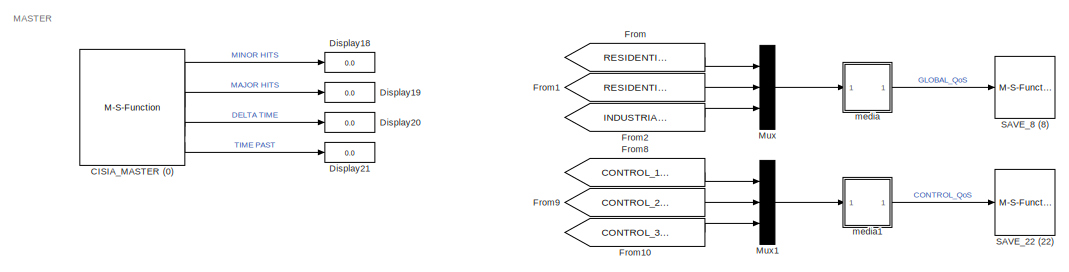
[diagram: root canvas - part 1/9, top left region]
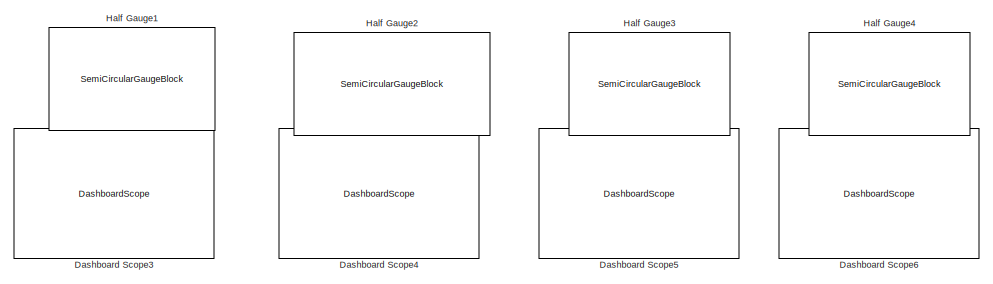
[diagram: root canvas - part 2/9, top right region]
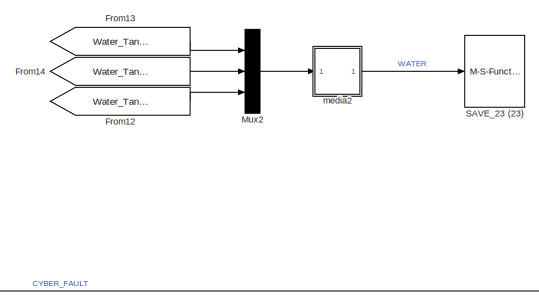
[diagram: root canvas - part 3/9, top center region]
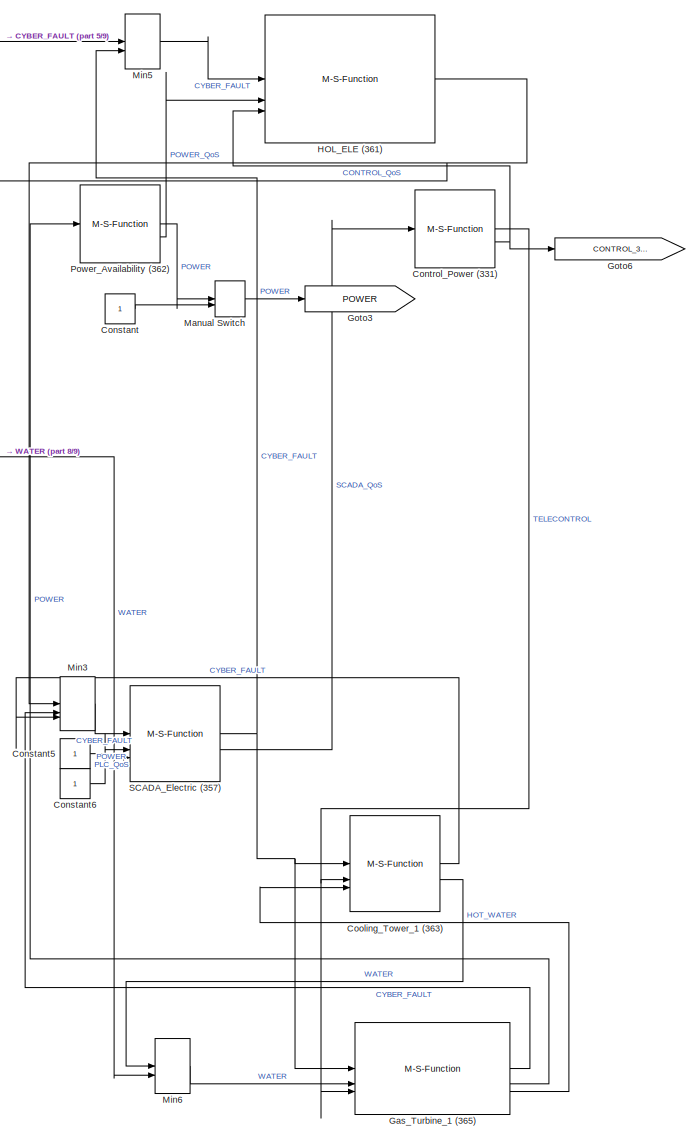
[diagram: root canvas - part 4/9, right side, full height]
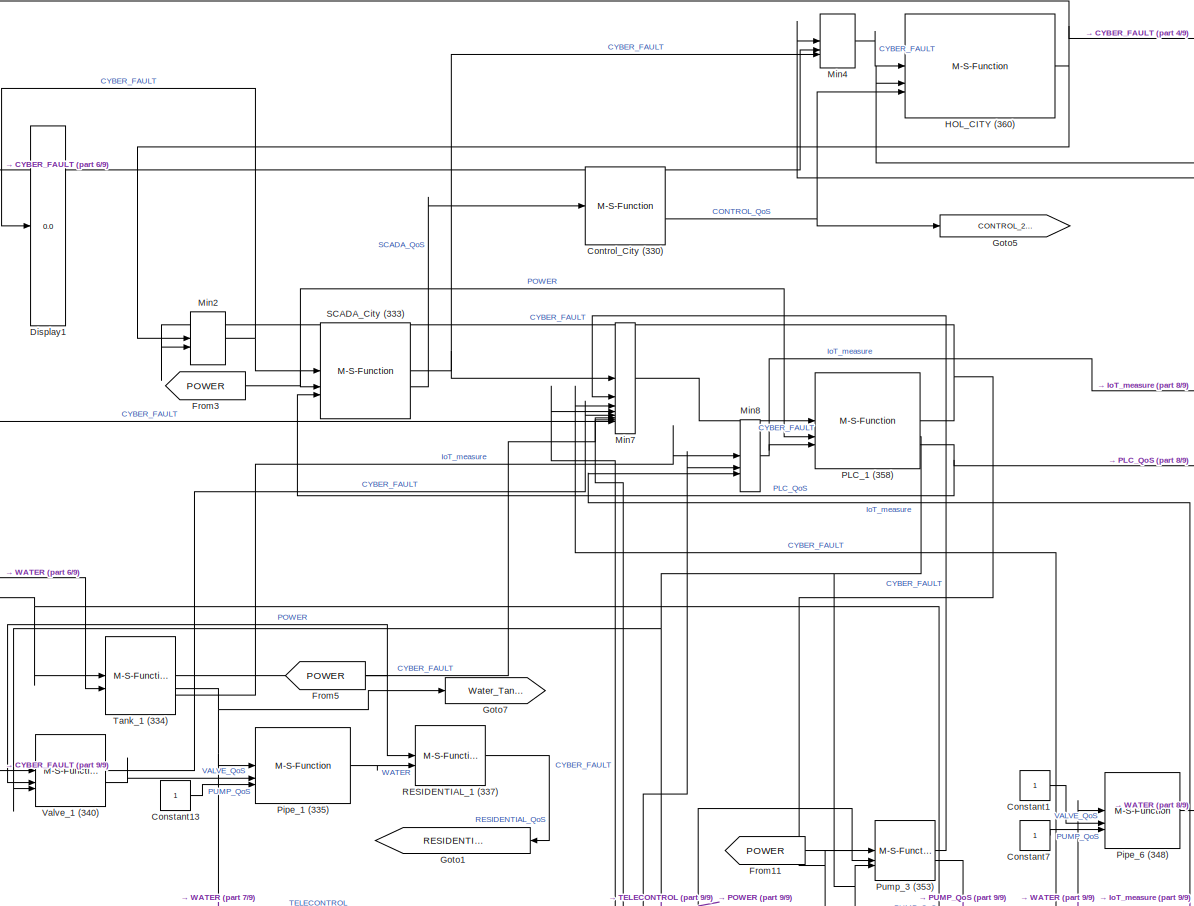
[diagram: root canvas - part 5/9, central region]
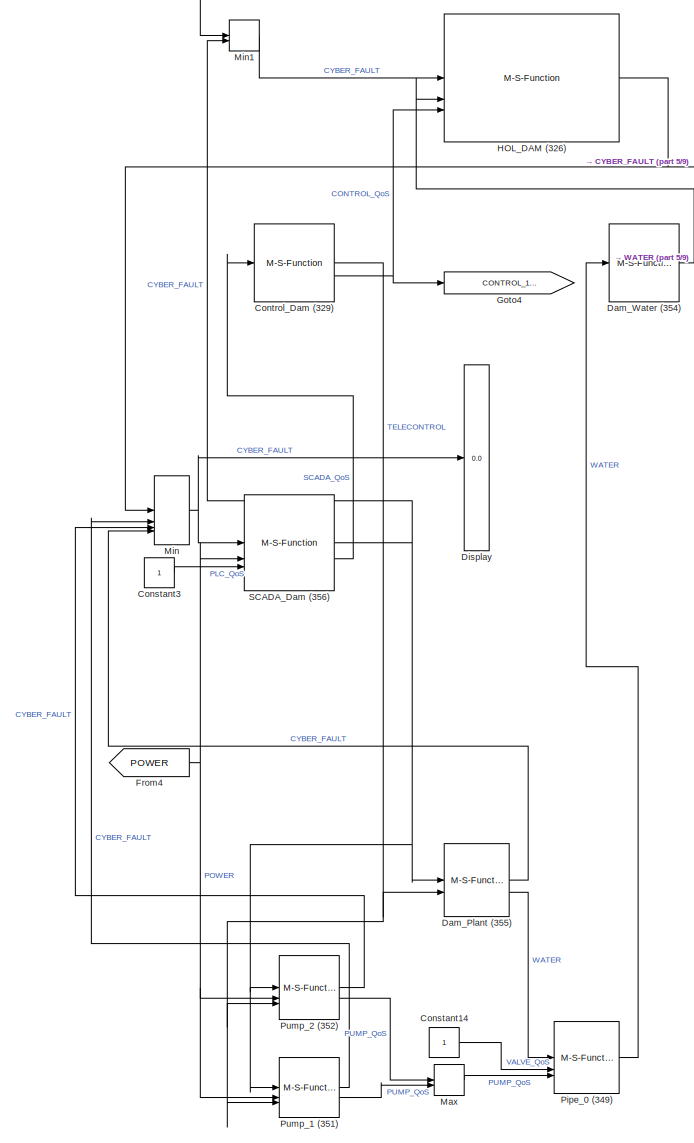
[diagram: root canvas - part 6/9, left side, full height]
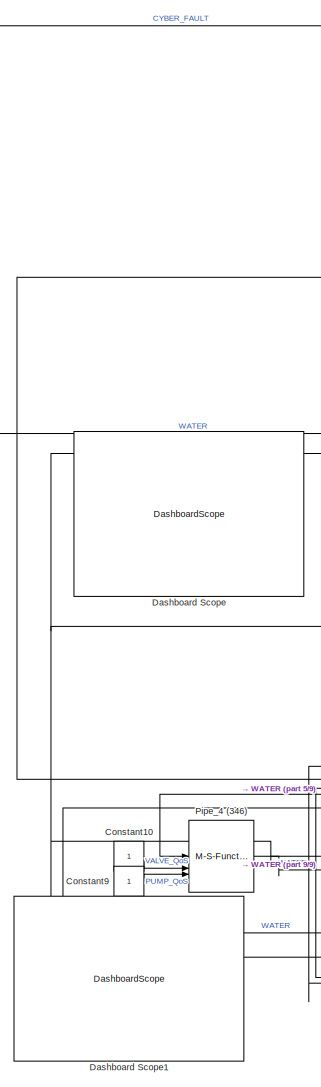
[diagram: root canvas - part 7/9, middle left region]
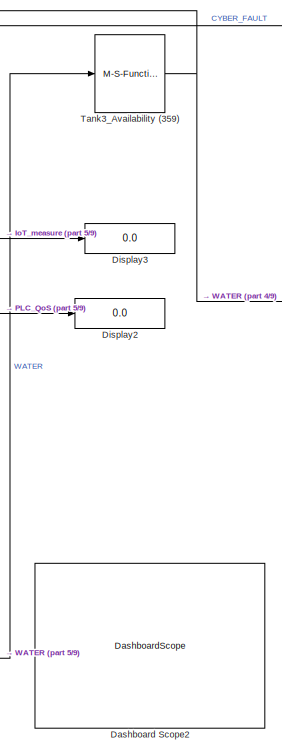
[diagram: root canvas - part 8/9, middle right region]
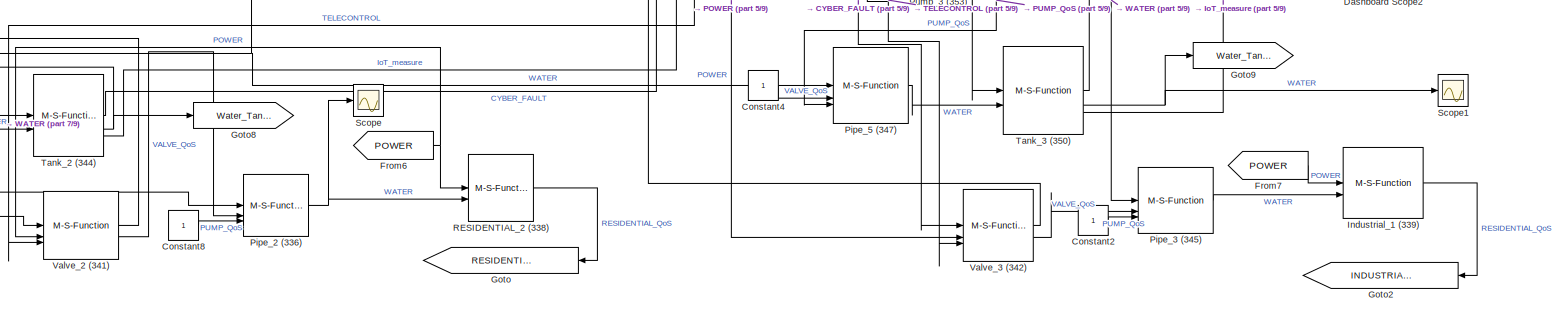
[diagram: root canvas - part 9/9, bottom center region]
MODEL slx_b3e928d2ec79
KIND model
CONFIG AbsTol = auto
CONFIG EnableMultiTasking = off
CONFIG FixedStep = auto
CONFIG MaxStep = auto
CONFIG MinStep = auto
CONFIG RelTol = 1e-3
CONFIG SampleTimeConstraint = Unconstrained
CONFIG SolverName = VariableStepAuto
CONFIG StartTime = 0.0
CONFIG StopTime = 6
BLOCK [M-S-Function] CISIA_MASTER (0)
  FunctionName = cisia_msfun
  Parameters = Parameter1, Parameter2, Parameter3, resources, Parameter4, Parameter5, Parameter6, Parameter7, Parameter8, Parameter9,Parameter11,Parameter12
BLOCK [Constant] Constant
BLOCK [Constant] Constant1
BLOCK [Constant] Constant10
BLOCK [Constant] Constant13
BLOCK [Constant] Constant14
BLOCK [Constant] Constant2
BLOCK [Constant] Constant3
BLOCK [Constant] Constant4
BLOCK [Constant] Constant5
BLOCK [Constant] Constant6
BLOCK [Constant] Constant7
BLOCK [Constant] Constant8
BLOCK [Constant] Constant9
BLOCK [M-S-Function] Control_City (330)
  FunctionName = cisia_msfun
  Parameters = Parameter1, Parameter2, Parameter3, resources, Parameter10, codeupdate, step_received, step_computed, dynamic_computed, step_sended, id_entity, id_project, id_type, name_type, color
BLOCK [M-S-Function] Control_Dam (329)
  FunctionName = cisia_msfun
  Parameters = Parameter1, Parameter2, Parameter3, resources, Parameter10, codeupdate, step_received, step_computed, dynamic_computed, step_sended, id_entity, id_project, id_type, name_type, color
BLOCK [M-S-Function] Control_Power (331)
  FunctionName = cisia_msfun
  Parameters = Parameter1, Parameter2, Parameter3, resources, Parameter10, codeupdate, step_received, step_computed, dynamic_computed, step_sended, id_entity, id_project, id_type, name_type, color
BLOCK [M-S-Function] Cooling_Tower_1 (363)
  FunctionName = cisia_msfun
  Parameters = Parameter1, Parameter2, Parameter3, resources, Parameter10, codeupdate, step_received, step_computed, dynamic_computed, step_sended, id_entity, id_project, id_type, name_type, color
BLOCK [M-S-Function] Dam_Plant (355)
  FunctionName = cisia_msfun
  Parameters = Parameter1, Parameter2, Parameter3, resources, Parameter10, codeupdate, step_received, step_computed, dynamic_computed, step_sended, id_entity, id_project, id_type, name_type, color
BLOCK [M-S-Function] Dam_Water (354)
  FunctionName = cisia_msfun
  Parameters = Parameter1, Parameter2, Parameter3, resources, Parameter10, codeupdate, step_received, step_computed, dynamic_computed, step_sended, id_entity, id_project, id_type, name_type, color
BLOCK [DashboardScope] Dashboard Scope
  Ymax = 1
  Ymin = 0
BLOCK [DashboardScope] Dashboard Scope1
  Ymax = 1
  Ymin = 0
BLOCK [DashboardScope] Dashboard Scope2
  Ymax = 1
  Ymin = 0
BLOCK [DashboardScope] Dashboard Scope3
  Ymax = 1
  Ymin = 0
BLOCK [DashboardScope] Dashboard Scope4
  Ymax = 1
  Ymin = 0
BLOCK [DashboardScope] Dashboard Scope5
  Ymax = 1
  Ymin = 0
BLOCK [DashboardScope] Dashboard Scope6
  Ymax = 1
  Ymin = 0
BLOCK [Display] Display
  Decimation = 1
BLOCK [Display] Display1
  Decimation = 1
BLOCK [Display] Display18
  Decimation = 1
BLOCK [Display] Display19
  Decimation = 1
BLOCK [Display] Display2
  Decimation = 1
BLOCK [Display] Display20
  Decimation = 1
BLOCK [Display] Display21
  Decimation = 1
BLOCK [Display] Display3
  Decimation = 1
BLOCK [From] From
  GotoTag = RESIDENTIAL_1_QoS
BLOCK [From] From1
  GotoTag = RESIDENTIAL_2_QoS
BLOCK [From] From10
  GotoTag = CONTROL_3_QoS
BLOCK [From] From11
  GotoTag = POWER
BLOCK [From] From12
  GotoTag = Water_Tank_3
BLOCK [From] From13
  GotoTag = Water_Tank_1
BLOCK [From] From14
  GotoTag = Water_Tank_2
BLOCK [From] From2
  GotoTag = INDUSTRIAL_1_QoS
BLOCK [From] From3
  GotoTag = POWER
BLOCK [From] From4
  GotoTag = POWER
BLOCK [From] From5
  GotoTag = POWER
BLOCK [From] From6
  GotoTag = POWER
BLOCK [From] From7
  GotoTag = POWER
BLOCK [From] From8
  GotoTag = CONTROL_1_QoS
BLOCK [From] From9
  GotoTag = CONTROL_2_QoS
BLOCK [M-S-Function] Gas_Turbine_1 (365)
  FunctionName = cisia_msfun
  Parameters = Parameter1, Parameter2, Parameter3, resources, Parameter10, codeupdate, step_received, step_computed, dynamic_computed, step_sended, id_entity, id_project, id_type, name_type, color
BLOCK [Goto] Goto
  GotoTag = RESIDENTIAL_2_QoS
  NameLocation = top
BLOCK [Goto] Goto1
  GotoTag = RESIDENTIAL_1_QoS
  NameLocation = top
BLOCK [Goto] Goto2
  GotoTag = INDUSTRIAL_1_QoS
  NameLocation = top
BLOCK [Goto] Goto3
  GotoTag = POWER
BLOCK [Goto] Goto4
  GotoTag = CONTROL_1_QoS
BLOCK [Goto] Goto5
  GotoTag = CONTROL_2_QoS
BLOCK [Goto] Goto6
  GotoTag = CONTROL_3_QoS
BLOCK [Goto] Goto7
  GotoTag = Water_Tank_1
BLOCK [Goto] Goto8
  GotoTag = Water_Tank_2
BLOCK [Goto] Goto9
  GotoTag = Water_Tank_3
BLOCK [M-S-Function] HOL_CITY (360)
  FunctionName = cisia_msfun
  Parameters = Parameter1, Parameter2, Parameter3, resources, Parameter10, codeupdate, step_received, step_computed, dynamic_computed, step_sended, id_entity, id_project, id_type, name_type, color
BLOCK [M-S-Function] HOL_DAM (326)
  FunctionName = cisia_msfun
  Parameters = Parameter1, Parameter2, Parameter3, resources, Parameter10, codeupdate, step_received, step_computed, dynamic_computed, step_sended, id_entity, id_project, id_type, name_type, color
BLOCK [M-S-Function] HOL_ELE (361)
  FunctionName = cisia_msfun
  Parameters = Parameter1, Parameter2, Parameter3, resources, Parameter10, codeupdate, step_received, step_computed, dynamic_computed, step_sended, id_entity, id_project, id_type, name_type, color
BLOCK [SemiCircularGaugeBlock] Half Gauge1
  ScaleMax = 1
BLOCK [SemiCircularGaugeBlock] Half Gauge2
  ScaleMax = 1
BLOCK [SemiCircularGaugeBlock] Half Gauge3
  ScaleMax = 1
BLOCK [SemiCircularGaugeBlock] Half Gauge4
  ScaleMax = 1
BLOCK [M-S-Function] Industrial_1 (339)
  FunctionName = cisia_msfun
  Parameters = Parameter1, Parameter2, Parameter3, resources, Parameter10, codeupdate, step_received, step_computed, dynamic_computed, step_sended, id_entity, id_project, id_type, name_type, color
BLOCK [ManualSwitch] Manual Switch
BLOCK [MinMax] Max
  Function = max
  Inputs = 2
BLOCK [MinMax] Min
  Function = max
  Inputs = 4
BLOCK [MinMax] Min1
  Function = max
  Inputs = 2
BLOCK [MinMax] Min2
  Function = max
  Inputs = 2
BLOCK [MinMax] Min3
  Function = max
  Inputs = 3
BLOCK [MinMax] Min4
  Function = max
  Inputs = 3
BLOCK [MinMax] Min5
  Function = max
  Inputs = 2
BLOCK [MinMax] Min6
  Inputs = 2
BLOCK [MinMax] Min7
  Function = max
  Inputs = 8
BLOCK [MinMax] Min8
  Inputs = 3
BLOCK [Mux] Mux
  DisplayOption = bar
  Inputs = 3
BLOCK [Mux] Mux1
  DisplayOption = bar
  Inputs = 3
BLOCK [Mux] Mux2
  DisplayOption = bar
  Inputs = 3
BLOCK [M-S-Function] PLC_1 (358)
  FunctionName = cisia_msfun
  Parameters = Parameter1, Parameter2, Parameter3, resources, Parameter10, codeupdate, step_received, step_computed, dynamic_computed, step_sended, id_entity, id_project, id_type, name_type, color
BLOCK [M-S-Function] Pipe_0 (349)
  FunctionName = cisia_msfun
  Parameters = Parameter1, Parameter2, Parameter3, resources, Parameter10, codeupdate, step_received, step_computed, dynamic_computed, step_sended, id_entity, id_project, id_type, name_type, color
BLOCK [M-S-Function] Pipe_1 (335)
  FunctionName = cisia_msfun
  Parameters = Parameter1, Parameter2, Parameter3, resources, Parameter10, codeupdate, step_received, step_computed, dynamic_computed, step_sended, id_entity, id_project, id_type, name_type, color
BLOCK [M-S-Function] Pipe_2 (336)
  FunctionName = cisia_msfun
  Parameters = Parameter1, Parameter2, Parameter3, resources, Parameter10, codeupdate, step_received, step_computed, dynamic_computed, step_sended, id_entity, id_project, id_type, name_type, color
BLOCK [M-S-Function] Pipe_3 (345)
  FunctionName = cisia_msfun
  Parameters = Parameter1, Parameter2, Parameter3, resources, Parameter10, codeupdate, step_received, step_computed, dynamic_computed, step_sended, id_entity, id_project, id_type, name_type, color
BLOCK [M-S-Function] Pipe_4 (346)
  FunctionName = cisia_msfun
  Parameters = Parameter1, Parameter2, Parameter3, resources, Parameter10, codeupdate, step_received, step_computed, dynamic_computed, step_sended, id_entity, id_project, id_type, name_type, color
BLOCK [M-S-Function] Pipe_5 (347)
  FunctionName = cisia_msfun
  Parameters = Parameter1, Parameter2, Parameter3, resources, Parameter10, codeupdate, step_received, step_computed, dynamic_computed, step_sended, id_entity, id_project, id_type, name_type, color
BLOCK [M-S-Function] Pipe_6 (348)
  FunctionName = cisia_msfun
  Parameters = Parameter1, Parameter2, Parameter3, resources, Parameter10, codeupdate, step_received, step_computed, dynamic_computed, step_sended, id_entity, id_project, id_type, name_type, color
BLOCK [M-S-Function] Power_Availability (362)
  FunctionName = cisia_msfun
  Parameters = Parameter1, Parameter2, Parameter3, resources, Parameter10, codeupdate, step_received, step_computed, dynamic_computed, step_sended, id_entity, id_project, id_type, name_type, color
BLOCK [M-S-Function] Pump_1 (351)
  FunctionName = cisia_msfun
  Parameters = Parameter1, Parameter2, Parameter3, resources, Parameter10, codeupdate, step_received, step_computed, dynamic_computed, step_sended, id_entity, id_project, id_type, name_type, color
BLOCK [M-S-Function] Pump_2 (352)
  FunctionName = cisia_msfun
  Parameters = Parameter1, Parameter2, Parameter3, resources, Parameter10, codeupdate, step_received, step_computed, dynamic_computed, step_sended, id_entity, id_project, id_type, name_type, color
BLOCK [M-S-Function] Pump_3 (353)
  FunctionName = cisia_msfun
  Parameters = Parameter1, Parameter2, Parameter3, resources, Parameter10, codeupdate, step_received, step_computed, dynamic_computed, step_sended, id_entity, id_project, id_type, name_type, color
BLOCK [M-S-Function] RESIDENTIAL_1 (337)
  FunctionName = cisia_msfun
  Parameters = Parameter1, Parameter2, Parameter3, resources, Parameter10, codeupdate, step_received, step_computed, dynamic_computed, step_sended, id_entity, id_project, id_type, name_type, color
BLOCK [M-S-Function] RESIDENTIAL_2 (338)
  FunctionName = cisia_msfun
  Parameters = Parameter1, Parameter2, Parameter3, resources, Parameter10, codeupdate, step_received, step_computed, dynamic_computed, step_sended, id_entity, id_project, id_type, name_type, color
BLOCK [M-S-Function] SAVE_22 (22)
  FunctionName = cisia_msfun
  Parameters = Parameter1, Parameter2, Parameter3, Parameter4,Parameter5,Parameter6,Parameter7
BLOCK [M-S-Function] SAVE_23 (23)
  FunctionName = cisia_msfun
  Parameters = Parameter1, Parameter2, Parameter3, Parameter4,Parameter5,Parameter6,Parameter7
BLOCK [M-S-Function] SAVE_8 (8)
  FunctionName = cisia_msfun
  Parameters = Parameter1, Parameter2, Parameter3, Parameter4,Parameter5,Parameter6,Parameter7
BLOCK [M-S-Function] SCADA_City (333)
  FunctionName = cisia_msfun
  Parameters = Parameter1, Parameter2, Parameter3, resources, Parameter10, codeupdate, step_received, step_computed, dynamic_computed, step_sended, id_entity, id_project, id_type, name_type, color
BLOCK [M-S-Function] SCADA_Dam (356)
  FunctionName = cisia_msfun
  Parameters = Parameter1, Parameter2, Parameter3, resources, Parameter10, codeupdate, step_received, step_computed, dynamic_computed, step_sended, id_entity, id_project, id_type, name_type, color
BLOCK [M-S-Function] SCADA_Electric (357)
  FunctionName = cisia_msfun
  Parameters = Parameter1, Parameter2, Parameter3, resources, Parameter10, codeupdate, step_received, step_computed, dynamic_computed, step_sended, id_entity, id_project, id_type, name_type, color
BLOCK [Scope] Scope
  Floating = off
  NumInputPorts = 1
  ScopeSpecificationString = Simulink.scopes.TimeScopeBlockCfg('CurrentConfiguration', extmgr.ConfigurationSet(extmgr.Configuration('Core','General UI',true),extmgr.Configuration('Core','Source UI',true),extmgr.Configuration('Sources','WiredSimulink',true),extmgr.Configuration('Visuals','Time Domain',true,'SerializedDisplays',{struct('MinYLimReal','0.9','MaxYLimReal','1.1','YLabelReal','','MinYLimMag','0.9','MaxYLimMag','1.1'...<+1327ch>
BLOCK [Scope] Scope1
  Floating = off
  NumInputPorts = 1
  ScopeSpecificationString = Simulink.scopes.TimeScopeBlockCfg('CurrentConfiguration', extmgr.ConfigurationSet(extmgr.Configuration('Core','General UI',true),extmgr.Configuration('Core','Source UI',true),extmgr.Configuration('Sources','WiredSimulink',true,'DataLoggingVariableName','ScopeData1'),extmgr.Configuration('Visuals','Time Domain',true,'SerializedDisplays',{struct('MinYLimReal','-0.125','MaxYLimReal','1.125','YLabelRe...<+1413ch>
BLOCK [M-S-Function] Tank3_Availability (359)
  FunctionName = cisia_msfun
  Parameters = Parameter1, Parameter2, Parameter3, resources, Parameter10, codeupdate, step_received, step_computed, dynamic_computed, step_sended, id_entity, id_project, id_type, name_type, color
BLOCK [M-S-Function] Tank_1 (334)
  FunctionName = cisia_msfun
  Parameters = Parameter1, Parameter2, Parameter3, resources, Parameter10, codeupdate, step_received, step_computed, dynamic_computed, step_sended, id_entity, id_project, id_type, name_type, color
BLOCK [M-S-Function] Tank_2 (344)
  FunctionName = cisia_msfun
  Parameters = Parameter1, Parameter2, Parameter3, resources, Parameter10, codeupdate, step_received, step_computed, dynamic_computed, step_sended, id_entity, id_project, id_type, name_type, color
BLOCK [M-S-Function] Tank_3 (350)
  FunctionName = cisia_msfun
  Parameters = Parameter1, Parameter2, Parameter3, resources, Parameter10, codeupdate, step_received, step_computed, dynamic_computed, step_sended, id_entity, id_project, id_type, name_type, color
BLOCK [M-S-Function] Valve_1 (340)
  FunctionName = cisia_msfun
  Parameters = Parameter1, Parameter2, Parameter3, resources, Parameter10, codeupdate, step_received, step_computed, dynamic_computed, step_sended, id_entity, id_project, id_type, name_type, color
BLOCK [M-S-Function] Valve_2 (341)
  FunctionName = cisia_msfun
  Parameters = Parameter1, Parameter2, Parameter3, resources, Parameter10, codeupdate, step_received, step_computed, dynamic_computed, step_sended, id_entity, id_project, id_type, name_type, color
BLOCK [M-S-Function] Valve_3 (342)
  FunctionName = cisia_msfun
  Parameters = Parameter1, Parameter2, Parameter3, resources, Parameter10, codeupdate, step_received, step_computed, dynamic_computed, step_sended, id_entity, id_project, id_type, name_type, color
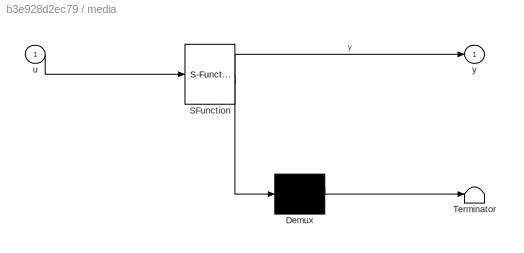
BLOCK [SubSystem] media
  ErrorFcn = Stateflow.Translate.translate
  LibrarySourceBlock = simulink/User-Defined\nFunctions/MATLAB Function
  PermitHierarchicalResolution = ExplicitOnly
  SFBlockType = MATLAB Function
  TreatAsAtomicUnit = on
BLOCK [Demux] media/ Demux 
  Outputs = 1
BLOCK [S-Function] media/ SFunction 
  EnableBusSupport = on
  FunctionName = sf_sfun
  PortCounts = [1 2]
  SFcnIsStateOwnerBlock = off
  SFunctionDeploymentMode = off
  Tag = Stateflow S-Function 2
BLOCK [Terminator] media/ Terminator 
BLOCK [Inport] media/u
BLOCK [Outport] media/y
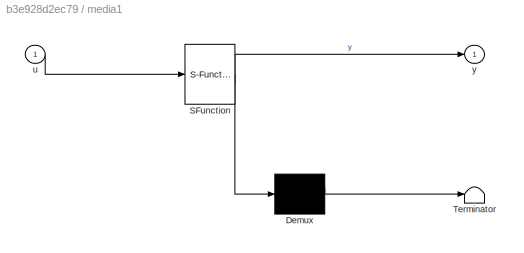
BLOCK [SubSystem] media1
  ErrorFcn = Stateflow.Translate.translate
  LibrarySourceBlock = simulink/User-Defined\nFunctions/MATLAB Function
  PermitHierarchicalResolution = ExplicitOnly
  SFBlockType = MATLAB Function
  TreatAsAtomicUnit = on
BLOCK [Demux] media1/ Demux 
  Outputs = 1
BLOCK [S-Function] media1/ SFunction 
  EnableBusSupport = on
  FunctionName = sf_sfun
  PortCounts = [1 2]
  SFcnIsStateOwnerBlock = off
  SFunctionDeploymentMode = off
  Tag = Stateflow S-Function 1
BLOCK [Terminator] media1/ Terminator 
BLOCK [Inport] media1/u
BLOCK [Outport] media1/y
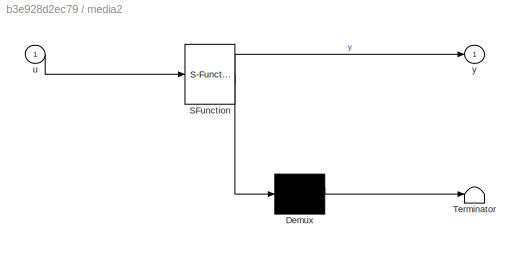
BLOCK [SubSystem] media2
  ErrorFcn = Stateflow.Translate.translate
  LibrarySourceBlock = simulink/User-Defined\nFunctions/MATLAB Function
  PermitHierarchicalResolution = ExplicitOnly
  SFBlockType = MATLAB Function
  TreatAsAtomicUnit = on
BLOCK [Demux] media2/ Demux 
  Outputs = 1
BLOCK [S-Function] media2/ SFunction 
  EnableBusSupport = on
  FunctionName = sf_sfun
  PortCounts = [1 2]
  SFcnIsStateOwnerBlock = off
  SFunctionDeploymentMode = off
  Tag = Stateflow S-Function 3
BLOCK [Terminator] media2/ Terminator 
BLOCK [Inport] media2/u
BLOCK [Outport] media2/y
ANNOTATION (root): MASTER
LINE CISIA_MASTER (0):1 -> Display18:1
LINE CISIA_MASTER (0):2 -> Display19:1
LINE CISIA_MASTER (0):3 -> Display20:1
LINE CISIA_MASTER (0):4 -> Display21:1
LINE Constant10:1 -> Pipe_4 (346):2
LINE Constant13:1 -> Pipe_1 (335):3
LINE Constant14:1 -> Pipe_0 (349):2
LINE Constant1:1 -> Pipe_6 (348):2
LINE Constant2:1 -> Pipe_3 (345):3
LINE Constant3:1 -> SCADA_Dam (356):3
LINE Constant4:1 -> Pipe_5 (347):2
LINE Constant5:1 -> SCADA_Electric (357):2
LINE Constant6:1 -> SCADA_Electric (357):3
LINE Constant7:1 -> Pipe_6 (348):3
LINE Constant8:1 -> Pipe_2 (336):3
LINE Constant9:1 -> Pipe_4 (346):3
LINE Constant:1 -> Manual Switch:2
NET Control_City (330):2 -> Goto5:1, HOL_CITY (360):3
NET Control_Dam (329):1 -> Dam_Plant (355):2, Pump_1 (351):3, Pump_2 (352):3
NET Control_Dam (329):2 -> Goto4:1, HOL_DAM (326):3
NET Control_Power (331):1 -> Cooling_Tower_1 (363):2, Gas_Turbine_1 (365):3
NET Control_Power (331):2 -> Goto6:1, HOL_ELE (361):3
LINE Cooling_Tower_1 (363):1 -> Min3:3
LINE Cooling_Tower_1 (363):2 -> Min6:1
LINE Dam_Plant (355):1 -> Min:4
LINE Dam_Plant (355):2 -> Pipe_0 (349):1
NET Dam_Water (354):1 -> HOL_DAM (326):2, Tank_1 (334):2
LINE From10:1 -> Mux1:3
NET From11:1 -> Pump_3 (353):2, Valve_3 (342):2
LINE From12:1 -> Mux2:3
LINE From13:1 -> Mux2:1
LINE From14:1 -> Mux2:2
LINE From1:1 -> Mux:2
LINE From2:1 -> Mux:3
NET From3:1 -> PLC_1 (358):2, SCADA_City (333):2
NET From4:1 -> Pump_1 (351):2, Pump_2 (352):2, SCADA_Dam (356):2
NET From5:1 -> RESIDENTIAL_1 (337):1, Valve_1 (340):2
NET From6:1 -> RESIDENTIAL_2 (338):1, Valve_2 (341):2
LINE From7:1 -> Industrial_1 (339):1
LINE From8:1 -> Mux1:1
LINE From9:1 -> Mux1:2
LINE From:1 -> Mux:1
LINE Gas_Turbine_1 (365):1 -> Min3:2
LINE Gas_Turbine_1 (365):2 -> Power_Availability (362):1
LINE Gas_Turbine_1 (365):3 -> Cooling_Tower_1 (363):3
NET HOL_CITY (360):1 -> Min1:1, Min2:1, Min5:1
NET HOL_DAM (326):1 -> Min4:2, Min:1
NET HOL_ELE (361):1 -> Min3:1, Min4:1
LINE Industrial_1 (339):1 -> Goto2:1
LINE Manual Switch:1 -> Goto3:1
LINE Max:1 -> Pipe_0 (349):3
LINE Min1:1 -> HOL_DAM (326):1
NET Min2:1 -> Display1:1, SCADA_City (333):1
LINE Min3:1 -> SCADA_Electric (357):1
LINE Min4:1 -> HOL_CITY (360):1
LINE Min5:1 -> HOL_ELE (361):1
LINE Min6:1 -> Gas_Turbine_1 (365):2
LINE Min7:1 -> PLC_1 (358):1
NET Min8:1 -> Display3:1, PLC_1 (358):3
NET Min:1 -> Display:1, SCADA_Dam (356):1
LINE Mux1:1 -> media1:1
LINE Mux2:1 -> media2:1
LINE Mux:1 -> media:1
NET PLC_1 (358):1 -> Min2:2, Pump_3 (353):1, Tank_1 (334):1, Tank_2 (344):1, Tank_3 (350):1, Valve_1 (340):1, Valve_2 (341):1, Valve_3 (342):1
NET PLC_1 (358):2 -> Pump_3 (353):3, Valve_1 (340):3, Valve_2 (341):3, Valve_3 (342):3
NET PLC_1 (358):3 -> Display2:1, SCADA_City (333):3
LINE Pipe_0 (349):1 -> Dam_Water (354):1
LINE Pipe_1 (335):1 -> RESIDENTIAL_1 (337):2
NET Pipe_2 (336):1 -> RESIDENTIAL_2 (338):2, Scope:1
LINE Pipe_3 (345):1 -> Industrial_1 (339):2
LINE Pipe_4 (346):1 -> Tank_2 (344):2
LINE Pipe_5 (347):1 -> Tank_3 (350):2
LINE Pipe_6 (348):1 -> Tank3_Availability (359):1
LINE Power_Availability (362):1 -> Manual Switch:1
LINE Power_Availability (362):2 -> HOL_ELE (361):2
LINE Pump_1 (351):1 -> Min:2
LINE Pump_1 (351):2 -> Max:2
LINE Pump_2 (352):1 -> Min:3
LINE Pump_2 (352):2 -> Max:1
LINE Pump_3 (353):1 -> Min7:2
LINE Pump_3 (353):2 -> Pipe_5 (347):3
LINE RESIDENTIAL_1 (337):1 -> Goto1:1
LINE RESIDENTIAL_2 (338):1 -> Goto:1
NET SCADA_City (333):1 -> Min4:3, Min7:1
LINE SCADA_City (333):2 -> Control_City (330):1
NET SCADA_Dam (356):1 -> Dam_Plant (355):1, Min1:2, Pump_1 (351):1, Pump_2 (352):1
LINE SCADA_Dam (356):2 -> Control_Dam (329):1
NET SCADA_Electric (357):1 -> Cooling_Tower_1 (363):1, Gas_Turbine_1 (365):1, Min5:2
LINE SCADA_Electric (357):2 -> Control_Power (331):1
NET Tank3_Availability (359):1 -> HOL_CITY (360):2, Min6:2
LINE Tank_1 (334):1 -> Min7:6
NET Tank_1 (334):2 -> Goto7:1, Pipe_1 (335):1, Pipe_4 (346):1, Pipe_5 (347):1
LINE Tank_1 (334):3 -> Min8:1
LINE Tank_2 (344):1 -> Min7:7
NET Tank_2 (344):2 -> Goto8:1, Pipe_2 (336):1
LINE Tank_2 (344):3 -> Min8:2
LINE Tank_3 (350):1 -> Min7:3
NET Tank_3 (350):2 -> Goto9:1, Pipe_3 (345):1, Pipe_6 (348):1, Scope1:1
LINE Tank_3 (350):3 -> Min8:3
LINE Valve_1 (340):1 -> Min7:5
LINE Valve_1 (340):2 -> Pipe_1 (335):2
LINE Valve_2 (341):1 -> Min7:8
LINE Valve_2 (341):2 -> Pipe_2 (336):2
LINE Valve_3 (342):1 -> Min7:4
LINE Valve_3 (342):2 -> Pipe_3 (345):2
LINE media1:1 -> SAVE_22 (22):1
LINE media2:1 -> SAVE_23 (23):1
LINE media:1 -> SAVE_8 (8):1
note: NET lines group one-source signal fan-out (src -> all destinations, sorted); 1:1 wires keep LINE
CHART media states=1 transitions=1
  STATE_LABEL 'eML_blk_kernel()'
  STATE_LABEL 'SCRIPT:\nfunction y = media(u)\n\ny = mean(u);\n'
CHART media2 states=1 transitions=1
  STATE_LABEL 'eML_blk_kernel()'
  STATE_LABEL 'SCRIPT:\nfunction y = media(u)\n\ny = mean(u);\n'
CHART media1 states=1 transitions=1
  STATE_LABEL 'eML_blk_kernel()'
  STATE_LABEL 'SCRIPT:\nfunction y = media(u)\n\ny = mean(u);\n'
CHART  states=0 transitions=0
CHART  states=0 transitions=0
CHART  states=0 transitions=0
